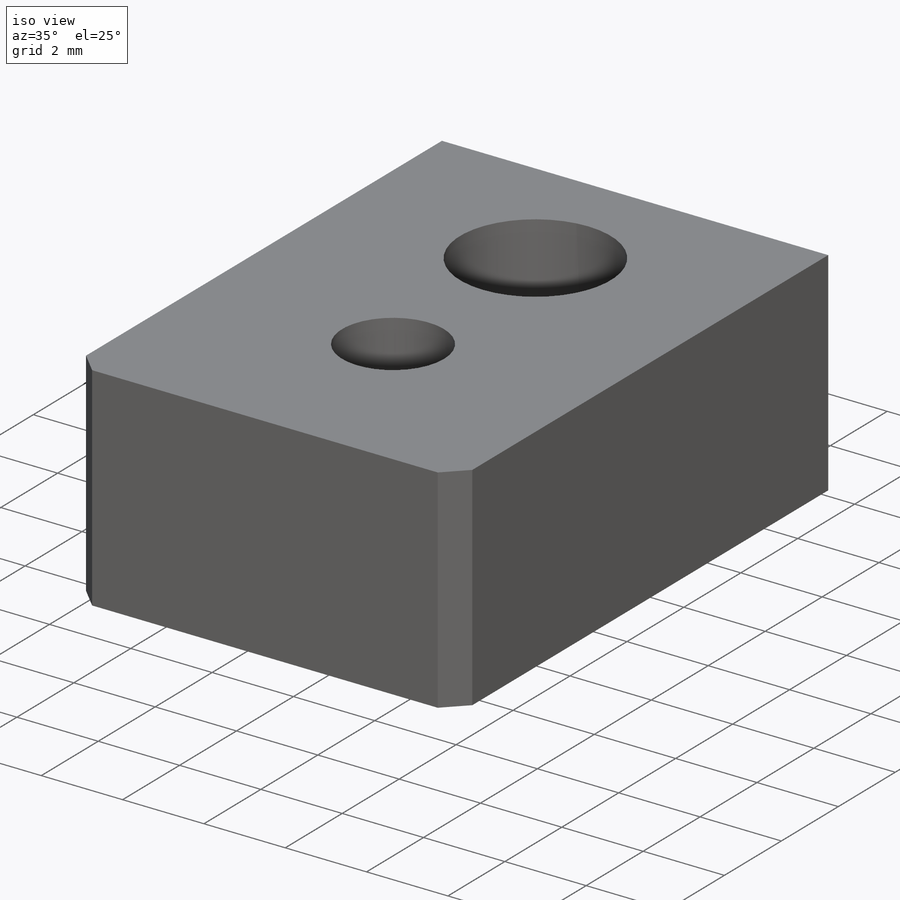
[diagram: iso view]
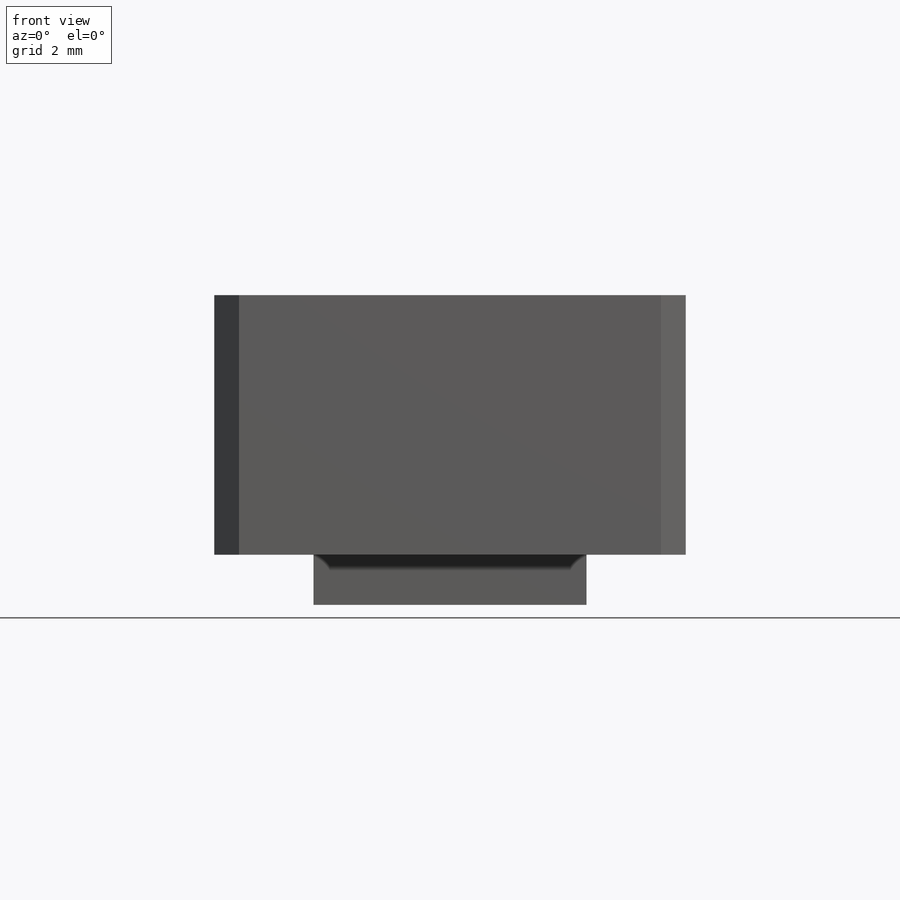
[diagram: front view]
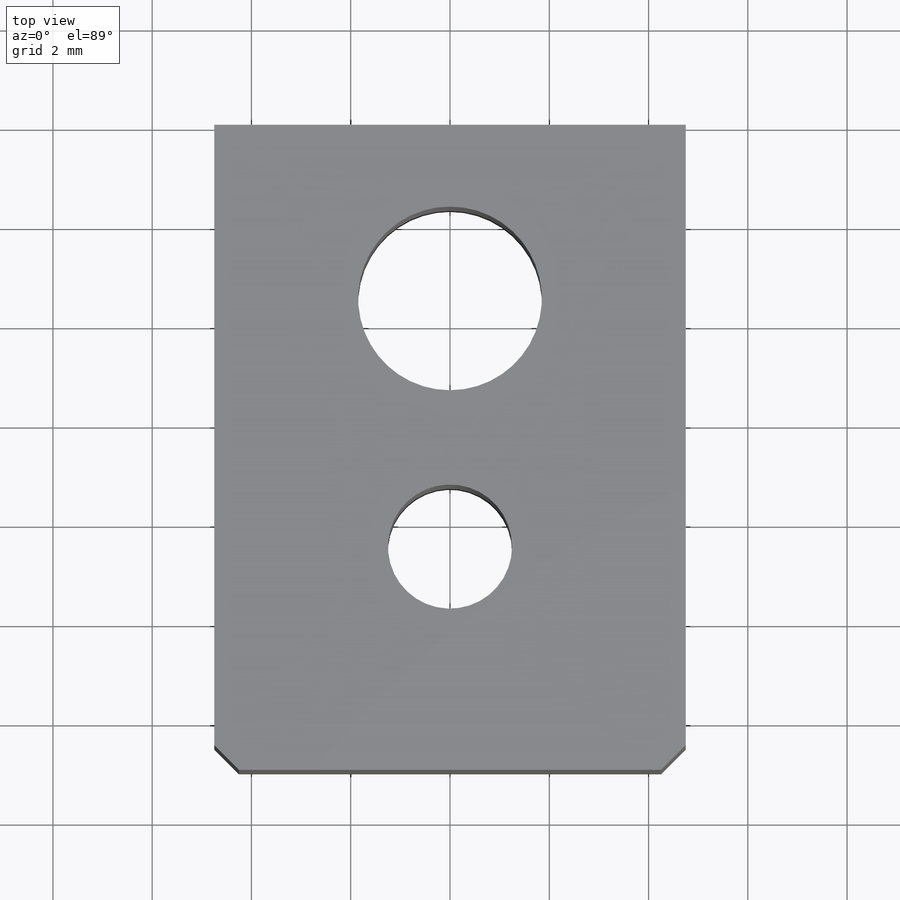
[diagram: top view]
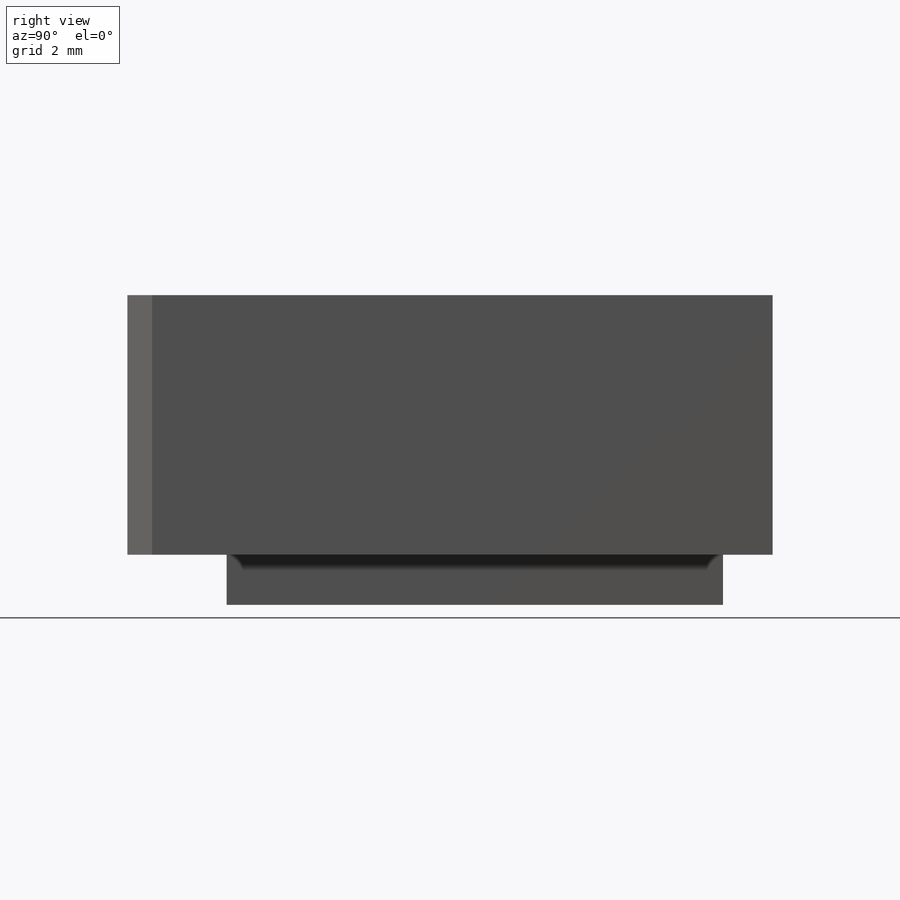
[diagram: right view]
SOLIDWORKS PART (.sldprt)
format: sldprt  version: not decoded by parser v0  size: 9,497,600 bytes
history: native  units: mm
features: sketch x7, plane x3, cut_extrude x3, extrude x2, chamfer x2, material x1, hole x1 + 3 further entries (+12 scaffold rows collapsed)
feature tree (34):
  scaffold x12  (default folders/planes/origin — collapsed)
  material  "Material <not specified>"
  plane  "Plane1"
  plane  "Plane2"
  plane  "Plane3"
  "Axis2"
  "Axis3"
  sketch  "Sketch1"  dims[c1.D9=3.0mm c1.D10=4.0mm c1.D1=2.5mm c1.D2=~42.935967mm c2.D2=50.0deg c2.D3=~91.177867mm c3.D2=~100.269623mm c4.D2=~59.104769deg c4.D3=188.0mm c4.D4=~104.165277mm c4.D5=125.0mm c4.D6=~60.834723mm c5.D4=182.695mm c5.D6=~46.36475mm c5.D1=~5.35288mm c5.D7=14.0mm c6.D1=6.5mm c6.D8=110.0mm c7.D1=~193.33025mm c7.D11=~14.60465mm c7.D6=57.0mm c8.D1=15.0mm c8.D5=116.5mm c8.D7=1.0mm c8.D3=10.0mm c8.D6=~7.866729mm c8.D8=4.5mm c9.D7=0.0mm c9.D1=5.5mm c9.D2=114.0mm c9.D3=117.175mm c10.D2=5.125mm c10.D4=0.25mm]
  extrude  "Extrude1"  Depth=10mm
  sketch  "Sketch6"  dims[D1=1.0mm]
  extrude  "Extrude2"  Depth=0.5mm
  hole  "Ø3.7 (3.7) Diameter Hole1"  Diameter=3.7mm Depth=5.625mm
  sketch  "Sketch5"  dims[D1=2.5mm D2=3.375mm]
  sketch  "Sketch4"  dims[hole-wizard template sketch: 60 standard entries collapsed; hole parameters kept: c18.Thru Hole Depth=5.625mm]
  "Axis4"
  sketch  "Sketch3"  dims[D2=2.5mm D1=2.5mm]
  cut_extrude  "Cut-Extrude1"  [1 undecoded]
  sketch  "Sketch7"  dims[D1=2.5mm D2=2.5mm D3=1.0mm]
  cut_extrude  "Extrude3"  [1 undecoded]
  chamfer  "Chamfer1"  Distance=0.5mm Angle=45deg
  chamfer  "Chamfer2"  Distance=0.5mm Angle=45deg
  sketch  "Sketch8"  dims[D1=1.0mm]
  cut_extrude  "Extrude4"  [1 undecoded]
decode coverage: 12 of 15 modeling features carry decoded parameters; 3 rows unclassified (native names shown)
note: ~ marks probable driven/reference dimensions
note: 3 parameter values undecoded
summary: no parameter record found for 3 features
note: suppression state not decoded; provenance and decode notes live in map.json
